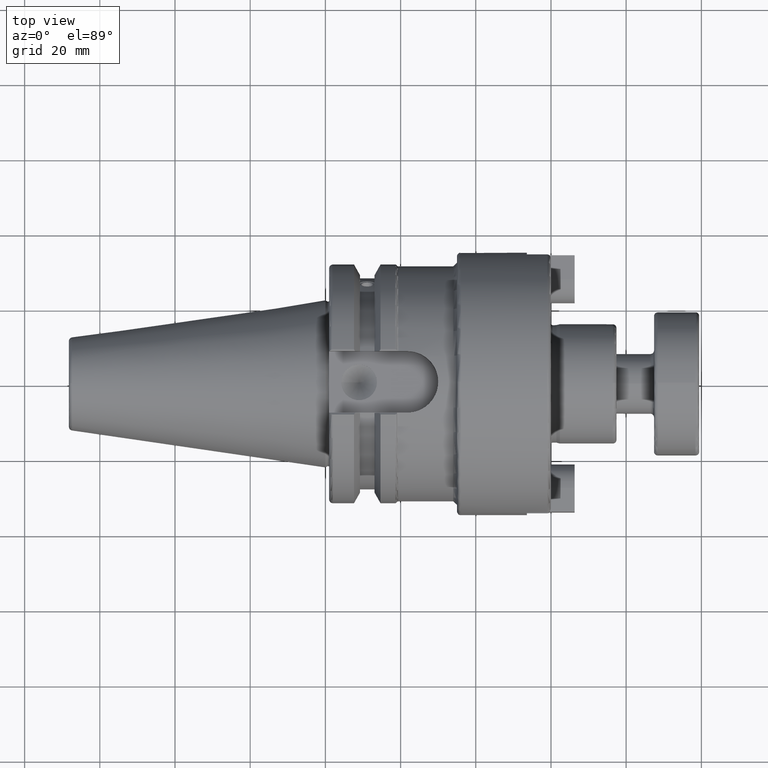
[diagram: clean part render]
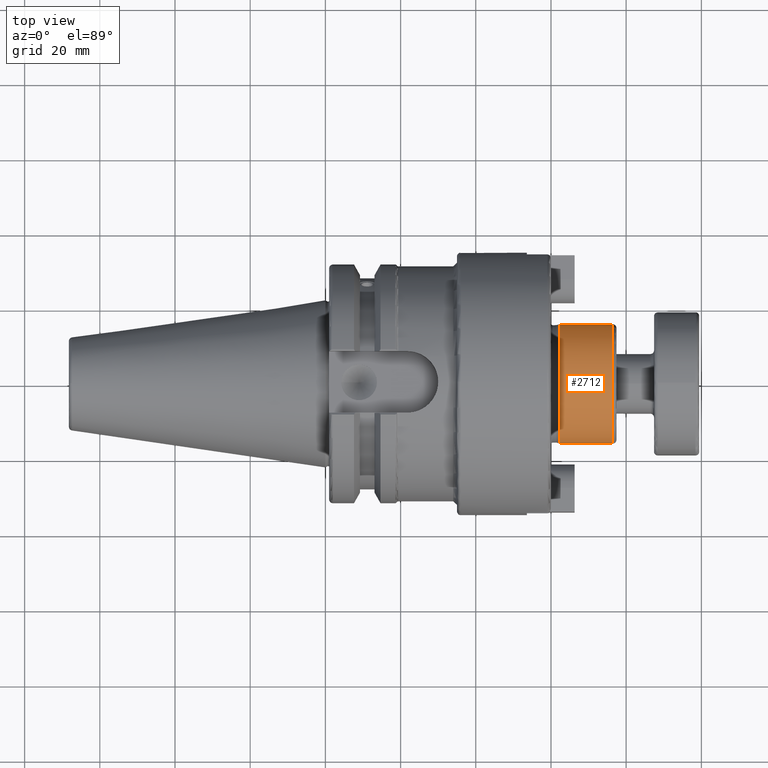
[diagram: same view with one face highlighted and labeled with its STEP entity id]
A machine part, top view. The second image highlights one B-rep face of the part: STEP entity #2712.
In plain terms, the highlighted cylindrical surface (bore or boss wall) has radius 15.875 mm, axis along (1, 0, 0).
Its self-contained STEP definition (entity closure, byte-faithful):
#273=FACE_OUTER_BOUND('',#441,.T.);
#441=EDGE_LOOP('',(#2004,#2005,#2006,#2007,#2008));
#632=CIRCLE('',#3022,15.875);
#633=CIRCLE('',#3023,15.875);
#634=CIRCLE('',#3025,15.875);
#788=LINE('',#4585,#961);
#961=VECTOR('',#3503,15.875);
#1214=VERTEX_POINT('',#4578);
#1215=VERTEX_POINT('',#4580);
#1216=VERTEX_POINT('',#4584);
#1517=EDGE_CURVE('',#1214,#1215,#632,.T.);
#1518=EDGE_CURVE('',#1215,#1214,#633,.T.);
#1519=EDGE_CURVE('',#1215,#1216,#788,.T.);
#1520=EDGE_CURVE('',#1216,#1216,#634,.T.);
#2004=ORIENTED_EDGE('',*,*,#1518,.F.);
#2005=ORIENTED_EDGE('',*,*,#1519,.T.);
#2006=ORIENTED_EDGE('',*,*,#1520,.T.);
#2007=ORIENTED_EDGE('',*,*,#1519,.F.);
#2008=ORIENTED_EDGE('',*,*,#1517,.F.);
#2643=CYLINDRICAL_SURFACE('',#3024,15.875);
#2712=ADVANCED_FACE('',(#273),#2643,.T.);
#3022=AXIS2_PLACEMENT_3D('',#4581,#3497,#3498);
#3023=AXIS2_PLACEMENT_3D('',#4582,#3499,#3500);
#3024=AXIS2_PLACEMENT_3D('',#4583,#3501,#3502);
#3025=AXIS2_PLACEMENT_3D('',#4586,#3504,#3505);
#3497=DIRECTION('center_axis',(1.,0.,0.));
#3498=DIRECTION('ref_axis',(0.,-1.,1.83697019872103E-16));
#3499=DIRECTION('center_axis',(1.,0.,0.));
#3500=DIRECTION('ref_axis',(0.,-1.,1.83697019872103E-16));
#3501=DIRECTION('center_axis',(1.,0.,0.));
#3502=DIRECTION('ref_axis',(0.,1.,0.));
#3503=DIRECTION('',(-1.,0.,0.));
#3504=DIRECTION('center_axis',(1.,0.,0.));
#3505=DIRECTION('ref_axis',(0.,0.,-1.));
#4578=CARTESIAN_POINT('',(76.424,-1.94412679364642E-15,15.875));
#4580=CARTESIAN_POINT('',(76.424,-15.875,-1.94412679364642E-15));
#4581=CARTESIAN_POINT('Origin',(76.424,0.,0.));
#4582=CARTESIAN_POINT('Origin',(76.424,0.,0.));
#4583=CARTESIAN_POINT('Origin',(69.9005063509461,0.,0.));
#4584=CARTESIAN_POINT('',(62.3770127018922,-15.875,-1.94412679364642E-15));
#4585=CARTESIAN_POINT('',(69.9005063509461,-15.875,-1.94412679364642E-15));
#4586=CARTESIAN_POINT('Origin',(62.3770127018922,0.,0.));